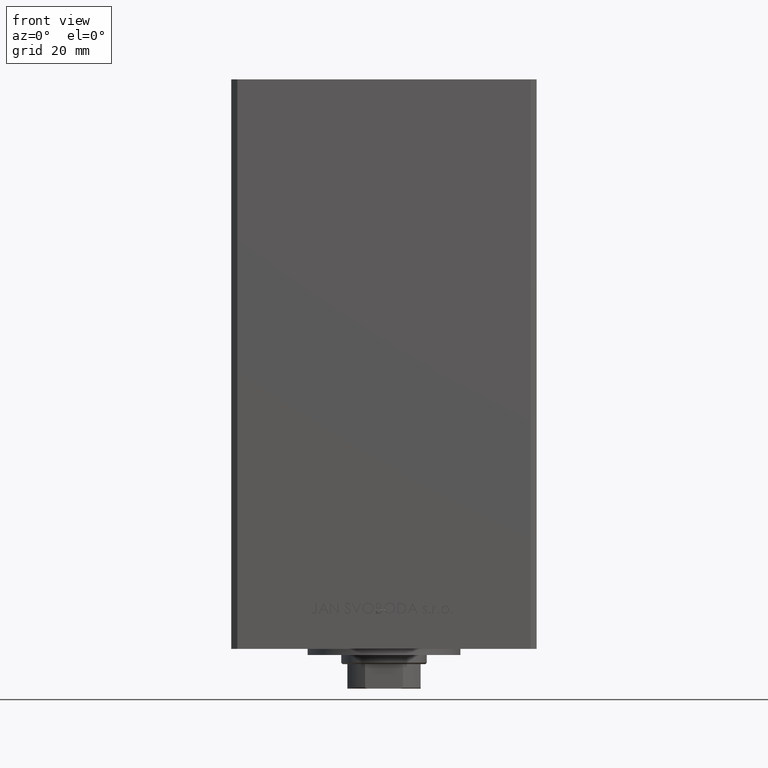
[diagram: clean part render]
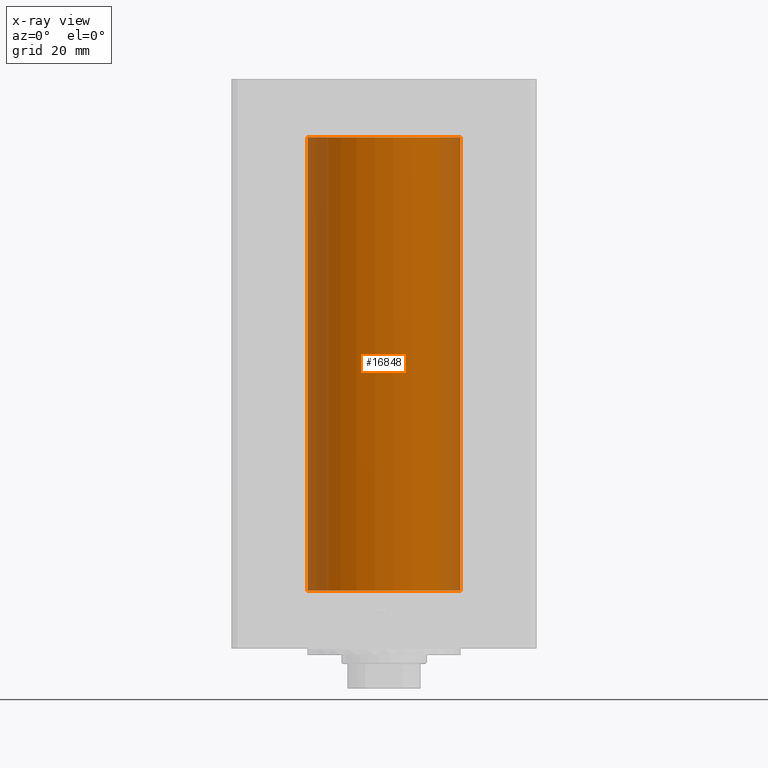
[diagram: x-ray — body ghosted, one internal face saturated and labeled with its STEP entity id]
A machine part, front view, then the same camera in x-ray: the body is ghosted and one INTERNAL B-rep face — a face not visible from any outside direction — is saturated and labeled: STEP entity #16848.
In plain terms, the highlighted cylindrical surface (partial cylindrical patch) has radius 25 mm, axis along (-0, -0, -1).
Its self-contained STEP definition (entity closure, byte-faithful):
#490 = DIRECTION ( 'NONE',  ( -0.000000000000000000, -0.000000000000000000, -1.000000000000000000 ) ) ;
#1289 = EDGE_CURVE ( 'NONE', #15459, #44931, #27504, .T. ) ;
#4035 = VECTOR ( 'NONE', #10480, 1000.000000000000000 ) ;
#6072 = AXIS2_PLACEMENT_3D ( 'NONE', #10259, #33580, #48743 ) ;
#6746 = LINE ( 'NONE', #23304, #4035 ) ;
#8157 = ORIENTED_EDGE ( 'NONE', *, *, #40962, .T. ) ;
#9801 = DIRECTION ( 'NONE',  ( 1.000000000000000000, 0.000000000000000000, 0.000000000000000000 ) ) ;
#10259 = CARTESIAN_POINT ( 'NONE',  ( 0.000000000000000000, 0.000000000000000000, 148.5000000000000000 ) ) ;
#10382 = ORIENTED_EDGE ( 'NONE', *, *, #38671, .F. ) ;
#10480 = DIRECTION ( 'NONE',  ( -0.000000000000000000, -0.000000000000000000, -1.000000000000000000 ) ) ;
#12596 = DIRECTION ( 'NONE',  ( -1.000000000000000000, 0.000000000000000000, 0.000000000000000000 ) ) ;
#15459 = VERTEX_POINT ( 'NONE', #41586 ) ;
#16038 = EDGE_CURVE ( 'NONE', #15459, #44552, #6746, .T. ) ;
#16080 = CARTESIAN_POINT ( 'NONE',  ( 0.000000000000000000, 0.000000000000000000, 148.5000000000000000 ) ) ;
#16532 = AXIS2_PLACEMENT_3D ( 'NONE', #32163, #36368, #9801 ) ;
#16848 = ADVANCED_FACE ( 'NONE', ( #30726 ), #31230, .F. ) ;
#19815 = DIRECTION ( 'NONE',  ( -0.000000000000000000, -0.000000000000000000, -1.000000000000000000 ) ) ;
#23304 = CARTESIAN_POINT ( 'NONE',  ( -25.00000000000000000, 0.000000000000000000, 148.5000000000000000 ) ) ;
#23441 = ORIENTED_EDGE ( 'NONE', *, *, #16038, .F. ) ;
#27504 = CIRCLE ( 'NONE', #6072, 25.00000000000000000 ) ;
#30241 = ORIENTED_EDGE ( 'NONE', *, *, #1289, .T. ) ;
#30726 = FACE_OUTER_BOUND ( 'NONE', #34301, .T. ) ;
#31230 = CYLINDRICAL_SURFACE ( 'NONE', #48518, 25.00000000000000000 ) ;
#32163 = CARTESIAN_POINT ( 'NONE',  ( 0.000000000000000000, 0.000000000000000000, 0.000000000000000000 ) ) ;
#33580 = DIRECTION ( 'NONE',  ( -0.000000000000000000, 0.000000000000000000, 1.000000000000000000 ) ) ;
#34301 = EDGE_LOOP ( 'NONE', ( #30241, #8157, #10382, #23441 ) ) ;
#36368 = DIRECTION ( 'NONE',  ( -0.000000000000000000, 0.000000000000000000, 1.000000000000000000 ) ) ;
#37479 = CARTESIAN_POINT ( 'NONE',  ( 25.00000000000000000, 3.061616997868383043E-15, 148.5000000000000000 ) ) ;
#38671 = EDGE_CURVE ( 'NONE', #44552, #40153, #42673, .T. ) ;
#40153 = VERTEX_POINT ( 'NONE', #40217 ) ;
#40217 = CARTESIAN_POINT ( 'NONE',  ( 25.00000000000000000, 3.061616997868383043E-15, 0.000000000000000000 ) ) ;
#40962 = EDGE_CURVE ( 'NONE', #44931, #40153, #41480, .T. ) ;
#41480 = LINE ( 'NONE', #46215, #46619 ) ;
#41586 = CARTESIAN_POINT ( 'NONE',  ( -25.00000000000000000, 0.000000000000000000, 148.5000000000000000 ) ) ;
#42673 = CIRCLE ( 'NONE', #16532, 25.00000000000000000 ) ;
#43602 = CARTESIAN_POINT ( 'NONE',  ( -25.00000000000000000, 0.000000000000000000, 0.000000000000000000 ) ) ;
#44552 = VERTEX_POINT ( 'NONE', #43602 ) ;
#44931 = VERTEX_POINT ( 'NONE', #37479 ) ;
#46215 = CARTESIAN_POINT ( 'NONE',  ( 25.00000000000000000, 3.061616997868383043E-15, 148.5000000000000000 ) ) ;
#46619 = VECTOR ( 'NONE', #490, 1000.000000000000000 ) ;
#48518 = AXIS2_PLACEMENT_3D ( 'NONE', #16080, #19815, #12596 ) ;
#48743 = DIRECTION ( 'NONE',  ( 1.000000000000000000, 0.000000000000000000, 0.000000000000000000 ) ) ;